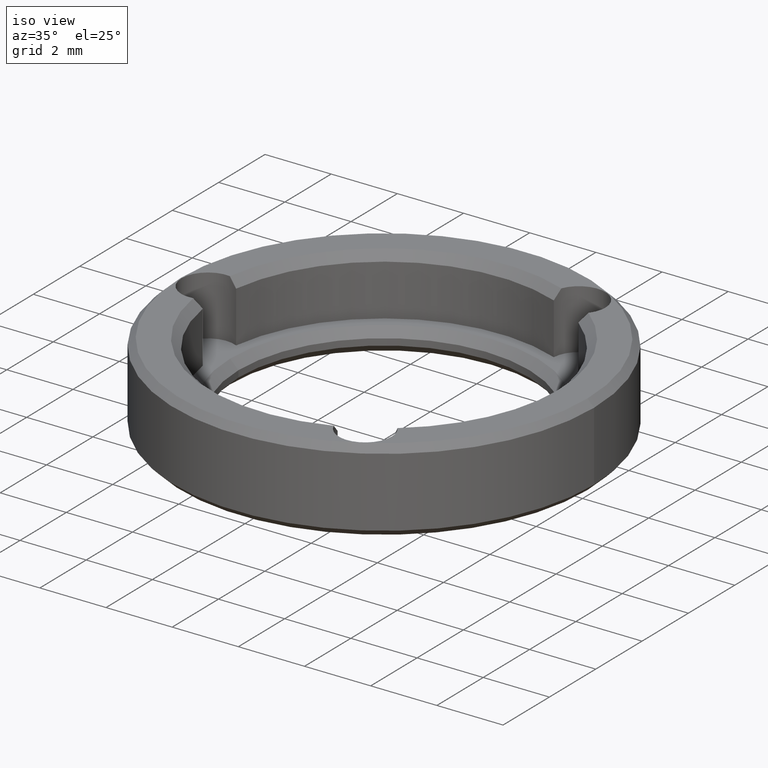
[diagram: clean part render]
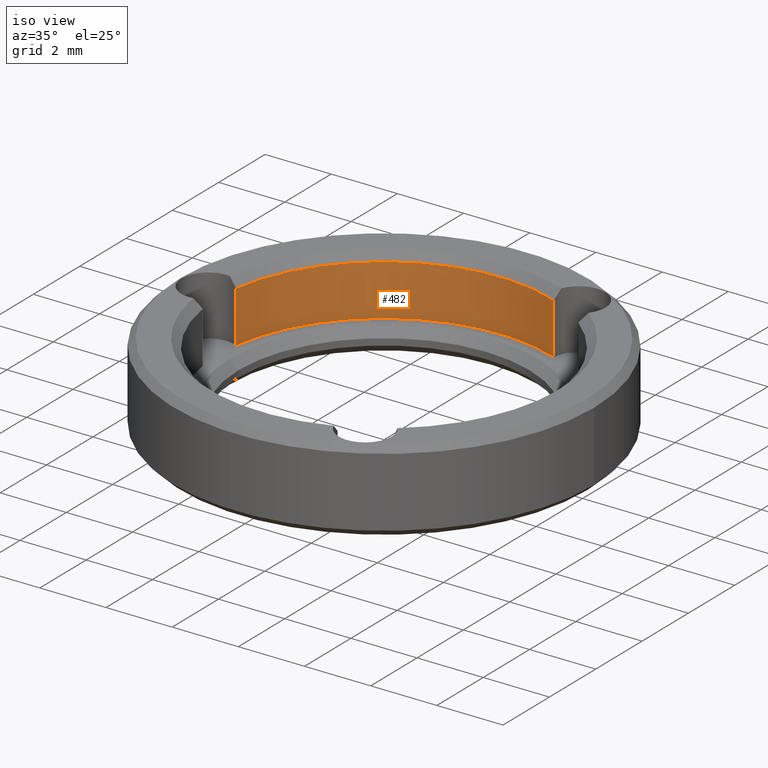
[diagram: same view with one face highlighted and labeled with its STEP entity id]
A machine part, iso view. The second image highlights one B-rep face of the part: STEP entity #482.
In plain terms, the highlighted cylindrical surface (partial cylindrical patch) has radius 5.025 mm, axis along (-0, -0, 1).
Its self-contained STEP definition (entity closure, byte-faithful):
#23 = DIRECTION ( 'NONE',  ( 0.000000000000000000, 0.000000000000000000, 1.000000000000000000 ) ) ;
#24 = CARTESIAN_POINT ( 'NONE',  ( -4.973356807511737365, 0.7185729365740564090, 2.249999999999998224 ) ) ;
#27 = CARTESIAN_POINT ( 'NONE',  ( 0.000000000000000000, 0.000000000000000000, 2.249999999999998224 ) ) ;
#48 = FACE_OUTER_BOUND ( 'NONE', #365, .T. ) ;
#63 = DIRECTION ( 'NONE',  ( -0.000000000000000000, -0.000000000000000000, 1.000000000000000000 ) ) ;
#106 = ORIENTED_EDGE ( 'NONE', *, *, #796, .T. ) ;
#141 = LINE ( 'NONE', #358, #162 ) ;
#161 = VERTEX_POINT ( 'NONE', #339 ) ;
#162 = VECTOR ( 'NONE', #720, 1000.000000000000000 ) ;
#174 = CARTESIAN_POINT ( 'NONE',  ( 1.864375986210706992, 4.666339805676485319, 2.249999999999998224 ) ) ;
#223 = CARTESIAN_POINT ( 'NONE',  ( 0.000000000000000000, 0.000000000000000000, 0.7000000000000000666 ) ) ;
#237 = LINE ( 'NONE', #664, #278 ) ;
#246 = ORIENTED_EDGE ( 'NONE', *, *, #466, .T. ) ;
#248 = AXIS2_PLACEMENT_3D ( 'NONE', #615, #63, #544 ) ;
#278 = VECTOR ( 'NONE', #878, 1000.000000000000000 ) ;
#298 = ORIENTED_EDGE ( 'NONE', *, *, #728, .F. ) ;
#299 = EDGE_CURVE ( 'NONE', #305, #317, #141, .T. ) ;
#305 = VERTEX_POINT ( 'NONE', #24 ) ;
#317 = VERTEX_POINT ( 'NONE', #441 ) ;
#339 = CARTESIAN_POINT ( 'NONE',  ( 1.864375986210706992, 4.666339805676486208, 0.7000000000000000666 ) ) ;
#355 = VERTEX_POINT ( 'NONE', #174 ) ;
#358 = CARTESIAN_POINT ( 'NONE',  ( -4.973356807511738253, 0.7185729365740571861, 1.600000000000000311 ) ) ;
#365 = EDGE_LOOP ( 'NONE', ( #298, #106, #246, #392 ) ) ;
#392 = ORIENTED_EDGE ( 'NONE', *, *, #299, .T. ) ;
#417 = DIRECTION ( 'NONE',  ( 0.000000000000000000, 0.000000000000000000, 1.000000000000000000 ) ) ;
#441 = CARTESIAN_POINT ( 'NONE',  ( -4.973356807511738253, 0.7185729365740570751, 0.7000000000000000666 ) ) ;
#444 = AXIS2_PLACEMENT_3D ( 'NONE', #223, #23, #491 ) ;
#466 = EDGE_CURVE ( 'NONE', #355, #305, #622, .T. ) ;
#482 = ADVANCED_FACE ( 'NONE', ( #48 ), #698, .F. ) ;
#491 = DIRECTION ( 'NONE',  ( 1.000000000000000000, 0.000000000000000000, 0.000000000000000000 ) ) ;
#544 = DIRECTION ( 'NONE',  ( 1.000000000000000000, 0.000000000000000000, 0.000000000000000000 ) ) ;
#548 = AXIS2_PLACEMENT_3D ( 'NONE', #27, #417, #765 ) ;
#615 = CARTESIAN_POINT ( 'NONE',  ( 0.000000000000000000, 0.000000000000000000, 0.7000000000000000666 ) ) ;
#622 = CIRCLE ( 'NONE', #548, 5.025000000000000355 ) ;
#664 = CARTESIAN_POINT ( 'NONE',  ( 1.864375986210706992, 4.666339805676486208, 1.600000000000000311 ) ) ;
#698 = CYLINDRICAL_SURFACE ( 'NONE', #248, 5.025000000000000355 ) ;
#720 = DIRECTION ( 'NONE',  ( 0.000000000000000000, 0.000000000000000000, -1.000000000000000000 ) ) ;
#728 = EDGE_CURVE ( 'NONE', #161, #317, #843, .T. ) ;
#765 = DIRECTION ( 'NONE',  ( 1.000000000000000000, 0.000000000000000000, 0.000000000000000000 ) ) ;
#796 = EDGE_CURVE ( 'NONE', #161, #355, #237, .T. ) ;
#843 = CIRCLE ( 'NONE', #444, 5.025000000000000355 ) ;
#878 = DIRECTION ( 'NONE',  ( -0.000000000000000000, 0.000000000000000000, 1.000000000000000000 ) ) ;